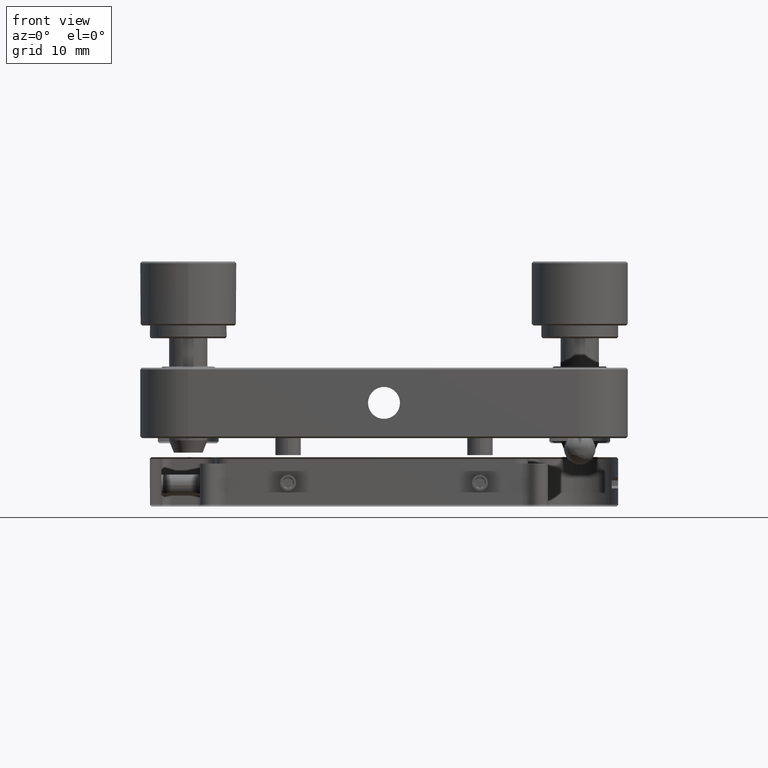
[diagram: clean part render]
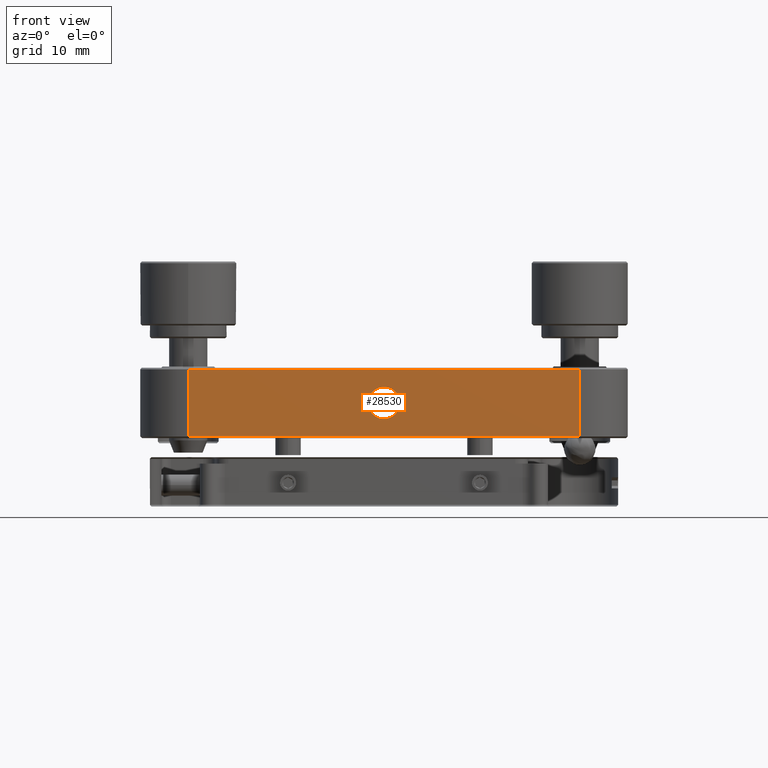
[diagram: same view with one face highlighted and labeled with its STEP entity id]
A machine part, front view. The second image highlights one B-rep face of the part: STEP entity #28530.
In plain terms, the highlighted planar face has unit normal (0, 1, -0).
Its self-contained STEP definition (entity closure, byte-faithful):
#2693 = CARTESIAN_POINT ( 'NONE',  ( -1.508193224455170123, -40.33355427905575397, 36.49439455682065159 ) ) ;
#4029 = VECTOR ( 'NONE', #52277, 1000.000000000000000 ) ;
#4268 = LINE ( 'NONE', #52892, #4029 ) ;
#5865 = CARTESIAN_POINT ( 'NONE',  ( 29.09180677554485328, -40.33355427905565449, 36.49439455682065159 ) ) ;
#5920 = ORIENTED_EDGE ( 'NONE', *, *, #30997, .F. ) ;
#7340 = AXIS2_PLACEMENT_3D ( 'NONE', #14674, #33939, #25085 ) ;
#7720 = EDGE_CURVE ( 'NONE', #60984, #20667, #44315, .T. ) ;
#9308 = PLANE ( 'NONE',  #7340 ) ;
#10608 = CARTESIAN_POINT ( 'NONE',  ( -32.10819322445495771, -40.33355427905575397, 46.99439455682060185 ) ) ;
#10823 = CARTESIAN_POINT ( 'NONE',  ( -32.10819322445495771, -40.33355427905570423, 36.24439455682065159 ) ) ;
#11617 = CARTESIAN_POINT ( 'NONE',  ( -39.60819322445520640, -40.33355427905570423, 46.99439455682060185 ) ) ;
#14674 = CARTESIAN_POINT ( 'NONE',  ( -39.60819322445520640, -40.33355427905570423, 36.24439455682065159 ) ) ;
#17268 = VECTOR ( 'NONE', #21000, 1000.000000000000000 ) ;
#17493 = CIRCLE ( 'NONE', #28572, 2.500000000000000000 ) ;
#20480 = LINE ( 'NONE', #11617, #27626 ) ;
#20548 = CIRCLE ( 'NONE', #28609, 2.500000000000000000 ) ;
#20667 = VERTEX_POINT ( 'NONE', #10608 ) ;
#20939 = CARTESIAN_POINT ( 'NONE',  ( 29.09180677554485328, -40.33355427905565449, 46.99439455682060185 ) ) ;
#21000 = DIRECTION ( 'NONE',  ( -1.000000000000000000, 1.067631398517729964E-16, 1.067631398517713941E-16 ) ) ;
#21035 = VECTOR ( 'NONE', #49680, 1000.000000000000000 ) ;
#22464 = EDGE_LOOP ( 'NONE', ( #34648, #48574 ) ) ;
#23661 = DIRECTION ( 'NONE',  ( -1.224646799147366026E-16, -1.000000000000000000, 3.992610896638194443E-46 ) ) ;
#23799 = EDGE_CURVE ( 'NONE', #32788, #52748, #17493, .T. ) ;
#23811 = CARTESIAN_POINT ( 'NONE',  ( -32.10819322445495771, -40.33355427905570423, 36.49439455682065159 ) ) ;
#25085 = DIRECTION ( 'NONE',  ( -1.000000000000000000, 2.135262797035424923E-16, 0.000000000000000000 ) ) ;
#27189 = ORIENTED_EDGE ( 'NONE', *, *, #7720, .F. ) ;
#27567 = DIRECTION ( 'NONE',  ( -1.224646799147366026E-16, -1.000000000000000000, 3.992610896638194443E-46 ) ) ;
#27626 = VECTOR ( 'NONE', #40054, 1000.000000000000000 ) ;
#28530 = ADVANCED_FACE ( 'NONE', ( #58564, #62363 ), #9308, .F. ) ;
#28572 = AXIS2_PLACEMENT_3D ( 'NONE', #42720, #27567, #46846 ) ;
#28609 = AXIS2_PLACEMENT_3D ( 'NONE', #57141, #23661, #29337 ) ;
#29337 = DIRECTION ( 'NONE',  ( 1.000000000000000000, 0.000000000000000000, 0.000000000000000000 ) ) ;
#30546 = EDGE_CURVE ( 'NONE', #52748, #32788, #20548, .T. ) ;
#30997 = EDGE_CURVE ( 'NONE', #20667, #46692, #20480, .T. ) ;
#32788 = VERTEX_POINT ( 'NONE', #51797 ) ;
#33939 = DIRECTION ( 'NONE',  ( 2.135262797035424923E-16, 1.000000000000000000, -4.166586132360724954E-46 ) ) ;
#34648 = ORIENTED_EDGE ( 'NONE', *, *, #30546, .F. ) ;
#35601 = EDGE_CURVE ( 'NONE', #46692, #42004, #4268, .T. ) ;
#40054 = DIRECTION ( 'NONE',  ( 1.000000000000000000, -2.135262797035424923E-16, -0.000000000000000000 ) ) ;
#42004 = VERTEX_POINT ( 'NONE', #5865 ) ;
#42064 = CARTESIAN_POINT ( 'NONE',  ( 0.9918067755448199962, -40.33355427905575397, 41.74439455682065159 ) ) ;
#42508 = EDGE_CURVE ( 'NONE', #42004, #60984, #59852, .T. ) ;
#42720 = CARTESIAN_POINT ( 'NONE',  ( -1.508193224455180115, -40.33355427905575397, 41.74439455682065159 ) ) ;
#44315 = LINE ( 'NONE', #10823, #21035 ) ;
#44730 = ORIENTED_EDGE ( 'NONE', *, *, #42508, .F. ) ;
#46692 = VERTEX_POINT ( 'NONE', #20939 ) ;
#46846 = DIRECTION ( 'NONE',  ( 1.000000000000000000, 0.000000000000000000, 0.000000000000000000 ) ) ;
#48574 = ORIENTED_EDGE ( 'NONE', *, *, #23799, .F. ) ;
#49680 = DIRECTION ( 'NONE',  ( -2.465190328815660140E-31, -3.743544432386654539E-46, 1.000000000000000000 ) ) ;
#51797 = CARTESIAN_POINT ( 'NONE',  ( -4.008193224455180115, -40.33355427905575397, 41.74439455682065159 ) ) ;
#52277 = DIRECTION ( 'NONE',  ( -8.896756359073587741E-62, -4.166586132360724954E-46, -1.000000000000000000 ) ) ;
#52505 = ORIENTED_EDGE ( 'NONE', *, *, #35601, .F. ) ;
#52748 = VERTEX_POINT ( 'NONE', #42064 ) ;
#52892 = CARTESIAN_POINT ( 'NONE',  ( 29.09180677554485328, -40.33355427905575397, 36.24439455682065159 ) ) ;
#57141 = CARTESIAN_POINT ( 'NONE',  ( -1.508193224455180115, -40.33355427905575397, 41.74439455682065159 ) ) ;
#58564 = FACE_OUTER_BOUND ( 'NONE', #60439, .T. ) ;
#59852 = LINE ( 'NONE', #2693, #17268 ) ;
#60439 = EDGE_LOOP ( 'NONE', ( #44730, #52505, #5920, #27189 ) ) ;
#60984 = VERTEX_POINT ( 'NONE', #23811 ) ;
#62363 = FACE_BOUND ( 'NONE', #22464, .T. ) ;